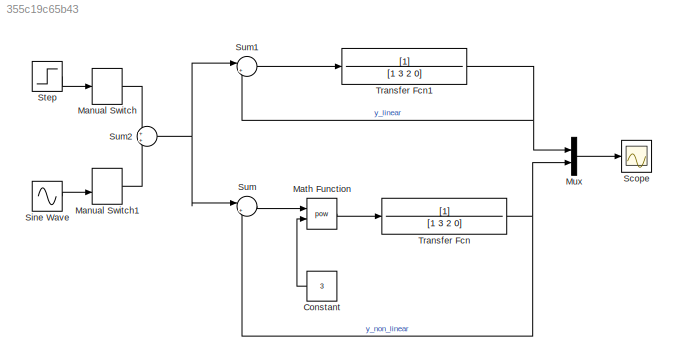
MODEL slx_355c19c65b43
KIND model
CONFIG AbsTol = auto
CONFIG EnableMultiTasking = off
CONFIG FixedStep = auto
CONFIG MaxStep = auto
CONFIG MinStep = auto
CONFIG RelTol = 1e-3
CONFIG SampleTimeConstraint = Unconstrained
CONFIG Solver = VariableStepAuto
CONFIG SolverName = VariableStepAuto
CONFIG StartTime = 0.0
CONFIG StopTime = 20
BLOCK [Constant] Constant
  Value = 3
BLOCK [ManualSwitch] Manual Switch
BLOCK [ManualSwitch] Manual Switch1
BLOCK [Math] Math Function
  Operator = pow
  Ports = [2, 1]
BLOCK [Mux] Mux
  DisplayOption = bar
  Inputs = 2
  Ports = [2, 1]
BLOCK [Scope] Scope
  NumInputPorts = 1
  Ports = [1]
  ScopeSpecificationString = Simulink.scopes.TimeScopeBlockCfg('CurrentConfiguration', extmgr.ConfigurationSet(extmgr.Configuration('Core','General UI',true),extmgr.Configuration('Core','Source UI',true),extmgr.Configuration('Sources','WiredSimulink',true),extmgr.Configuration('Visuals','Time Domain',true,'SerializedDisplays',{struct('MinYLimReal','-0.40132','MaxYLimReal','3.61185','YLabelReal','','MinYLimMag','0.00000','MaxY...<+1393ch>
BLOCK [Sin] Sine Wave
  Amplitude = 0.5
  Frequency = 10
  Phase = 2/pi
  Ports = [0, 1]
  SampleTime = 0
BLOCK [Step] Step
  After = 2
  SampleTime = 0
BLOCK [Sum] Sum
  IconShape = round
  InputSameDT = off
  Inputs = |+-
  OutDataTypeStr = Inherit: Inherit via internal rule
  Ports = [2, 1]
  SaturateOnIntegerOverflow = off
BLOCK [Sum] Sum1
  IconShape = round
  InputSameDT = off
  Inputs = |+-
  OutDataTypeStr = Inherit: Inherit via internal rule
  Ports = [2, 1]
  SaturateOnIntegerOverflow = off
BLOCK [Sum] Sum2
  IconShape = round
  InputSameDT = off
  OutDataTypeStr = Inherit: Inherit via internal rule
  Ports = [2, 1]
  SaturateOnIntegerOverflow = off
BLOCK [TransferFcn] Transfer Fcn
  Denominator = [1 3 2 0]
BLOCK [TransferFcn] Transfer Fcn1
  Denominator = [1 3 2 0]
LINE Constant:1 -> Math Function:2
LINE Manual Switch1:1 -> Sum2:2
LINE Manual Switch:1 -> Sum2:1
LINE Math Function:1 -> Transfer Fcn:1
LINE Mux:1 -> Scope:1
LINE Sine Wave:1 -> Manual Switch1:2
LINE Step:1 -> Manual Switch:1
LINE Sum1:1 -> Transfer Fcn1:1
NET Sum2:1 -> Sum1:1, Sum:1
LINE Sum:1 -> Math Function:1
NET Transfer Fcn1:1 -> Mux:1, Sum1:2
NET Transfer Fcn:1 -> Mux:2, Sum:2
note: NET lines group one-source signal fan-out (src -> all destinations, sorted); 1:1 wires keep LINE
